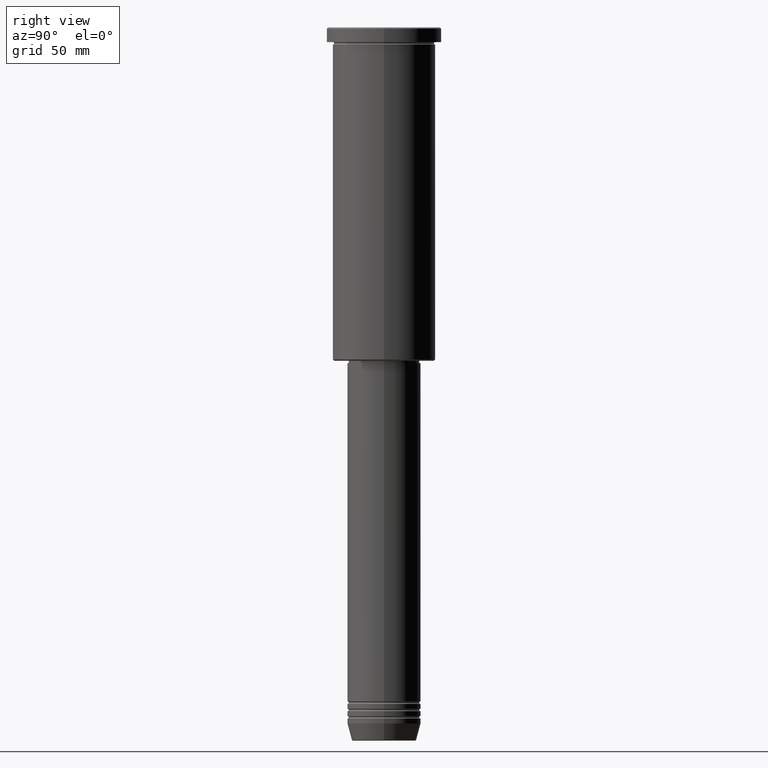
[diagram: clean part render]
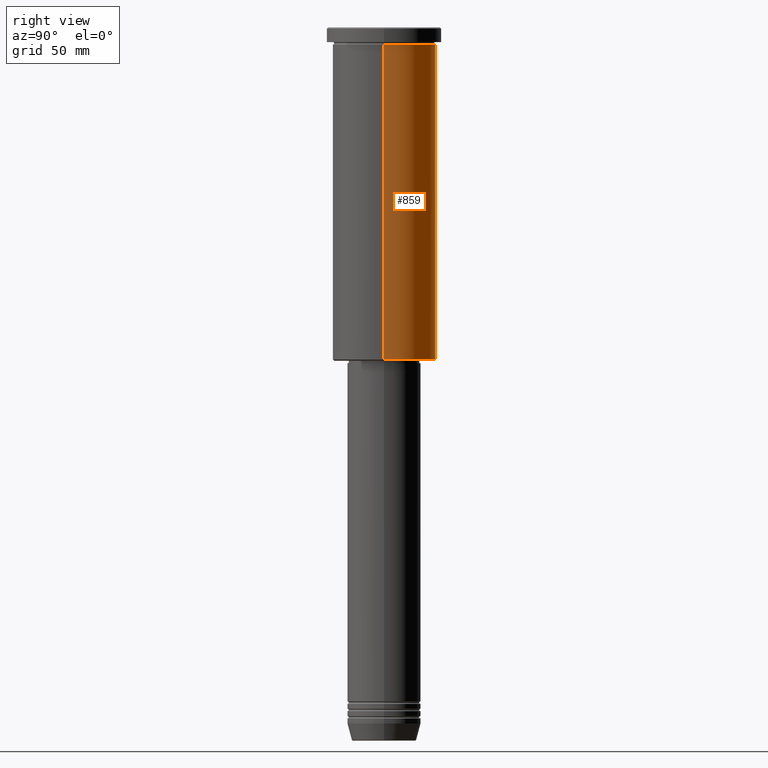
[diagram: same view with one face highlighted and labeled with its STEP entity id]
A machine part, right view. The second image highlights one B-rep face of the part: STEP entity #859.
In plain terms, the highlighted cylindrical surface (partial cylindrical patch) has radius 21 mm, axis along (-0, -0, 1).
Its self-contained STEP definition (entity closure, byte-faithful):
#31 = VERTEX_POINT ( 'NONE', #1148 ) ;
#44 = LINE ( 'NONE', #495, #94 ) ;
#63 = ORIENTED_EDGE ( 'NONE', *, *, #360, .T. ) ;
#65 = DIRECTION ( 'NONE',  ( -1.000000000000000000, 0.000000000000000000, 0.000000000000000000 ) ) ;
#94 = VECTOR ( 'NONE', #1128, 1000.000000000000000 ) ;
#108 = CARTESIAN_POINT ( 'NONE',  ( 0.000000000000000000, 0.000000000000000000, -6.999999999999994671 ) ) ;
#142 = DIRECTION ( 'NONE',  ( -0.000000000000000000, -0.000000000000000000, 1.000000000000000000 ) ) ;
#174 = CARTESIAN_POINT ( 'NONE',  ( 21.00000000000000000, 0.000000000000000000, 0.000000000000000000 ) ) ;
#195 = AXIS2_PLACEMENT_3D ( 'NONE', #108, #466, #623 ) ;
#218 = VERTEX_POINT ( 'NONE', #829 ) ;
#241 = CYLINDRICAL_SURFACE ( 'NONE', #657, 21.00000000000000000 ) ;
#304 = EDGE_CURVE ( 'NONE', #31, #719, #676, .T. ) ;
#308 = CIRCLE ( 'NONE', #600, 21.00000000000000000 ) ;
#312 = CARTESIAN_POINT ( 'NONE',  ( -21.00000000000000000, 2.571758278209441661E-15, -6.999999999999994671 ) ) ;
#359 = VERTEX_POINT ( 'NONE', #1047 ) ;
#360 = EDGE_CURVE ( 'NONE', #218, #719, #44, .T. ) ;
#466 = DIRECTION ( 'NONE',  ( -0.000000000000000000, -0.000000000000000000, 1.000000000000000000 ) ) ;
#495 = CARTESIAN_POINT ( 'NONE',  ( -21.00000000000000000, 2.571758278209441661E-15, 0.000000000000000000 ) ) ;
#587 = DIRECTION ( 'NONE',  ( 1.000000000000000000, 0.000000000000000000, 0.000000000000000000 ) ) ;
#600 = AXIS2_PLACEMENT_3D ( 'NONE', #975, #881, #65 ) ;
#623 = DIRECTION ( 'NONE',  ( 1.000000000000000000, 0.000000000000000000, 0.000000000000000000 ) ) ;
#657 = AXIS2_PLACEMENT_3D ( 'NONE', #792, #142, #587 ) ;
#676 = CIRCLE ( 'NONE', #195, 21.00000000000000000 ) ;
#699 = VECTOR ( 'NONE', #710, 1000.000000000000000 ) ;
#710 = DIRECTION ( 'NONE',  ( -0.000000000000000000, -0.000000000000000000, 1.000000000000000000 ) ) ;
#719 = VERTEX_POINT ( 'NONE', #312 ) ;
#783 = ORIENTED_EDGE ( 'NONE', *, *, #1016, .F. ) ;
#792 = CARTESIAN_POINT ( 'NONE',  ( 0.000000000000000000, 0.000000000000000000, 0.000000000000000000 ) ) ;
#822 = EDGE_LOOP ( 'NONE', ( #857, #63, #959, #783 ) ) ;
#829 = CARTESIAN_POINT ( 'NONE',  ( -21.00000000000000000, 2.571758278209441661E-15, -135.4999999999998863 ) ) ;
#843 = EDGE_CURVE ( 'NONE', #359, #218, #308, .T. ) ;
#857 = ORIENTED_EDGE ( 'NONE', *, *, #843, .T. ) ;
#859 = ADVANCED_FACE ( 'NONE', ( #964 ), #241, .T. ) ;
#881 = DIRECTION ( 'NONE',  ( -0.000000000000000000, -0.000000000000000000, 1.000000000000000000 ) ) ;
#959 = ORIENTED_EDGE ( 'NONE', *, *, #304, .F. ) ;
#964 = FACE_OUTER_BOUND ( 'NONE', #822, .T. ) ;
#975 = CARTESIAN_POINT ( 'NONE',  ( 0.000000000000000000, 0.000000000000000000, -135.4999999999998863 ) ) ;
#985 = LINE ( 'NONE', #174, #699 ) ;
#1016 = EDGE_CURVE ( 'NONE', #359, #31, #985, .T. ) ;
#1047 = CARTESIAN_POINT ( 'NONE',  ( 21.00000000000000000, 0.000000000000000000, -135.4999999999998863 ) ) ;
#1128 = DIRECTION ( 'NONE',  ( -0.000000000000000000, -0.000000000000000000, 1.000000000000000000 ) ) ;
#1148 = CARTESIAN_POINT ( 'NONE',  ( 21.00000000000000000, 0.000000000000000000, -6.999999999999994671 ) ) ;